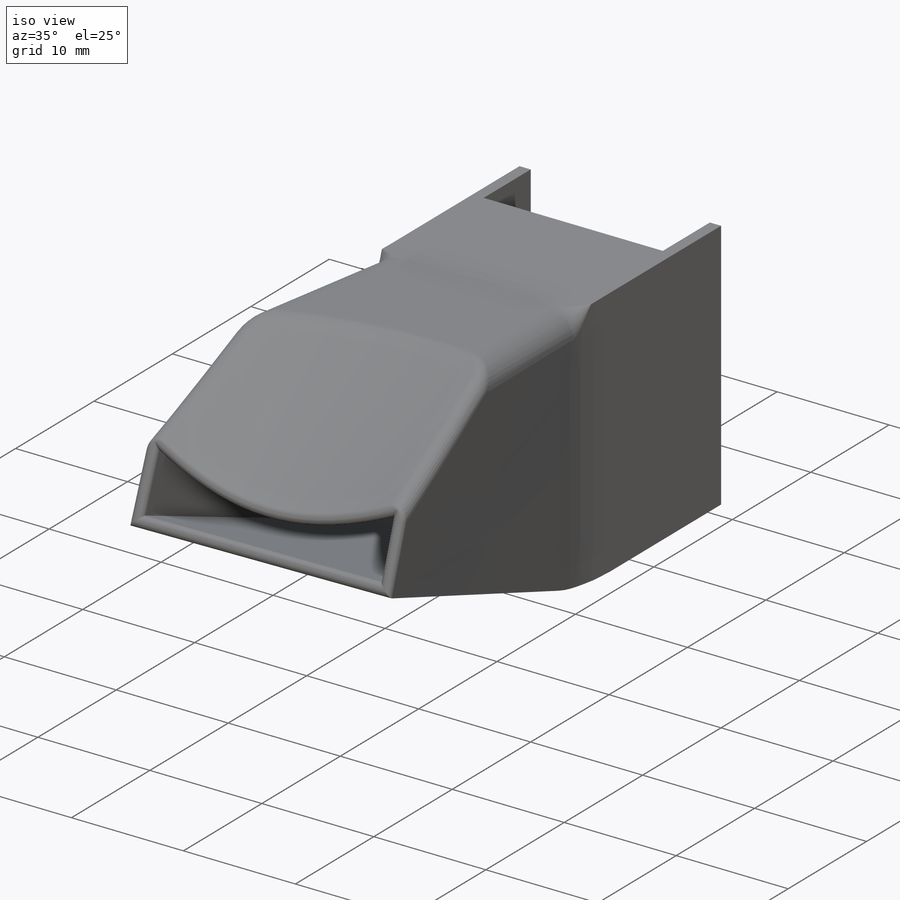
[diagram: iso view]
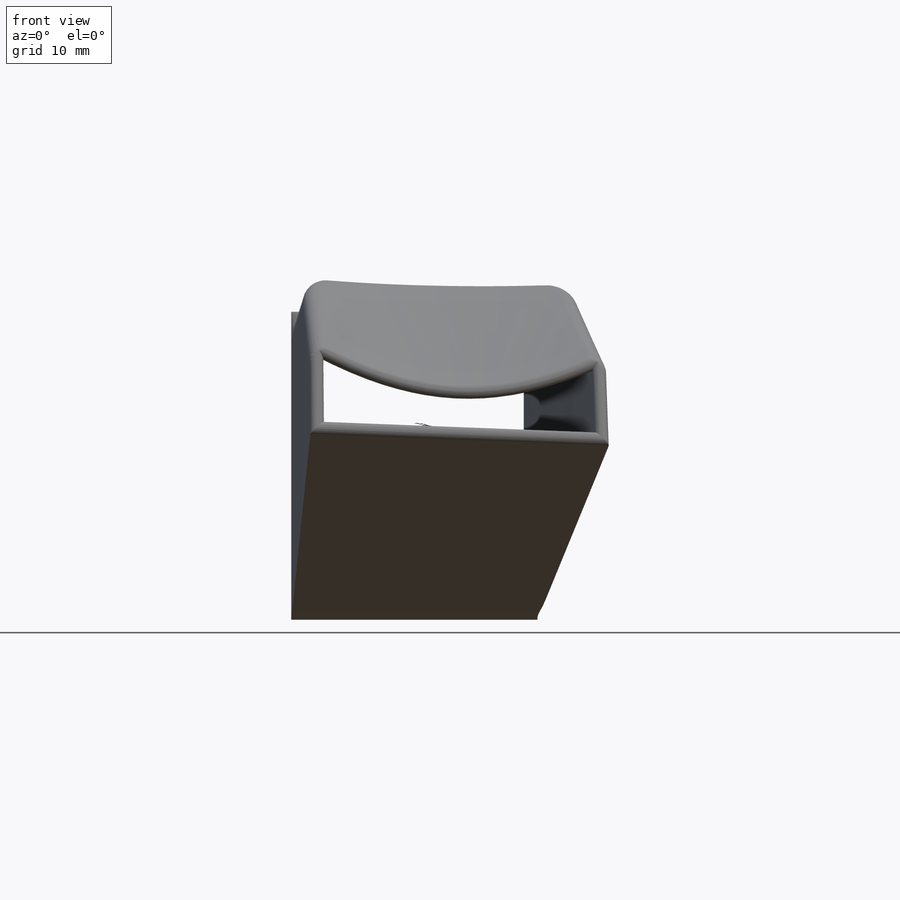
[diagram: front view]
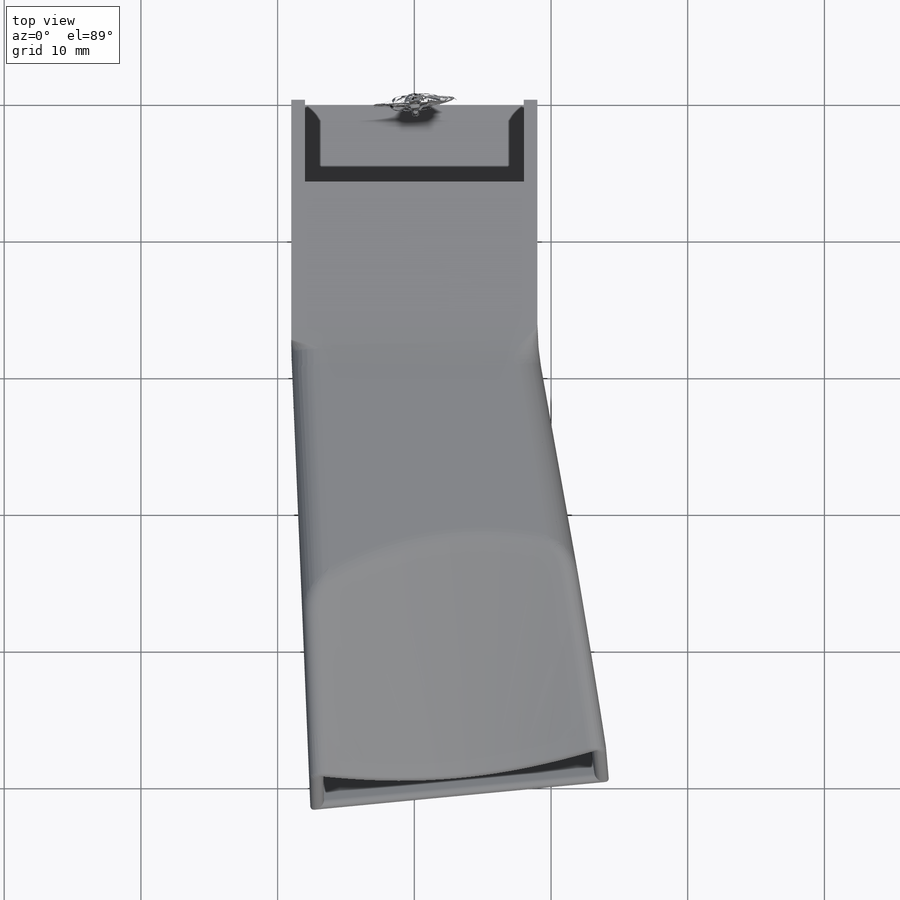
[diagram: top view]
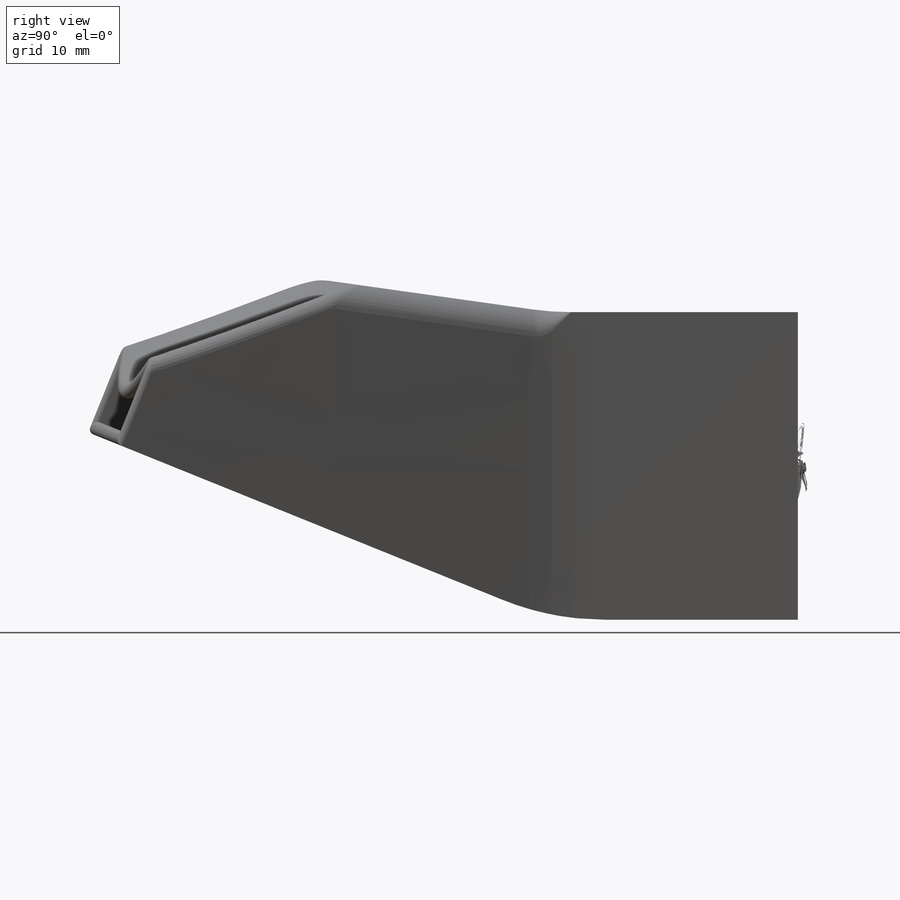
[diagram: right view]
SOLIDWORKS PART (.sldprt)
format: sldprt  version: not decoded by parser v0  size: 606,208 bytes
history: native  units: mm
features: sketch x7, plane x5, cut_extrude x3, fillet x3, material x1, extrude x1, shell x1 (+13 scaffold rows collapsed)
feature tree (34):
  scaffold x13  (default folders/planes/origin — collapsed)
  material  "ABS"
  sketch  "Sketch2"  dims[D1=18.0mm D2=22.5mm]
  extrude  "Boss-Extrude1"  Depth=18mm
  plane  "Plane1"
  plane  "Plane2"
  plane  "Plane3"  Offset=52mm
  sketch  "Sketch3"  dims[D1=5.0mm D2=24.0mm D3=10.0mm D4=24.0mm]
  plane  "Plane4"
  sketch  "Sketch4"  dims[D1=~20.644233mm]
  sketch  "3DSketch1"
  sketch  "Sketch5"  dims[D1=25.0mm]
  cut_extrude  "Cut-Extrude1"  Depth=20mm
  fillet  "Fillet1"  Radius=1mm
  fillet  "Fillet2"  Radius=20mm
  shell  "Shell2"  Thickness=1mm
  plane  "Plane5"
  sketch  "Sketch9"
  cut_extrude  "Cut-Extrude4"  Depth=9mm
  sketch  "Sketch7"
  cut_extrude  "Cut-Extrude3"  Depth=6mm
  fillet  "Fillet3"  Radius=0.45mm
decode coverage: 12 of 15 modeling features carry decoded parameters
note: ~ marks probable driven/reference dimensions
note: suppression state not decoded; provenance and decode notes live in map.json
